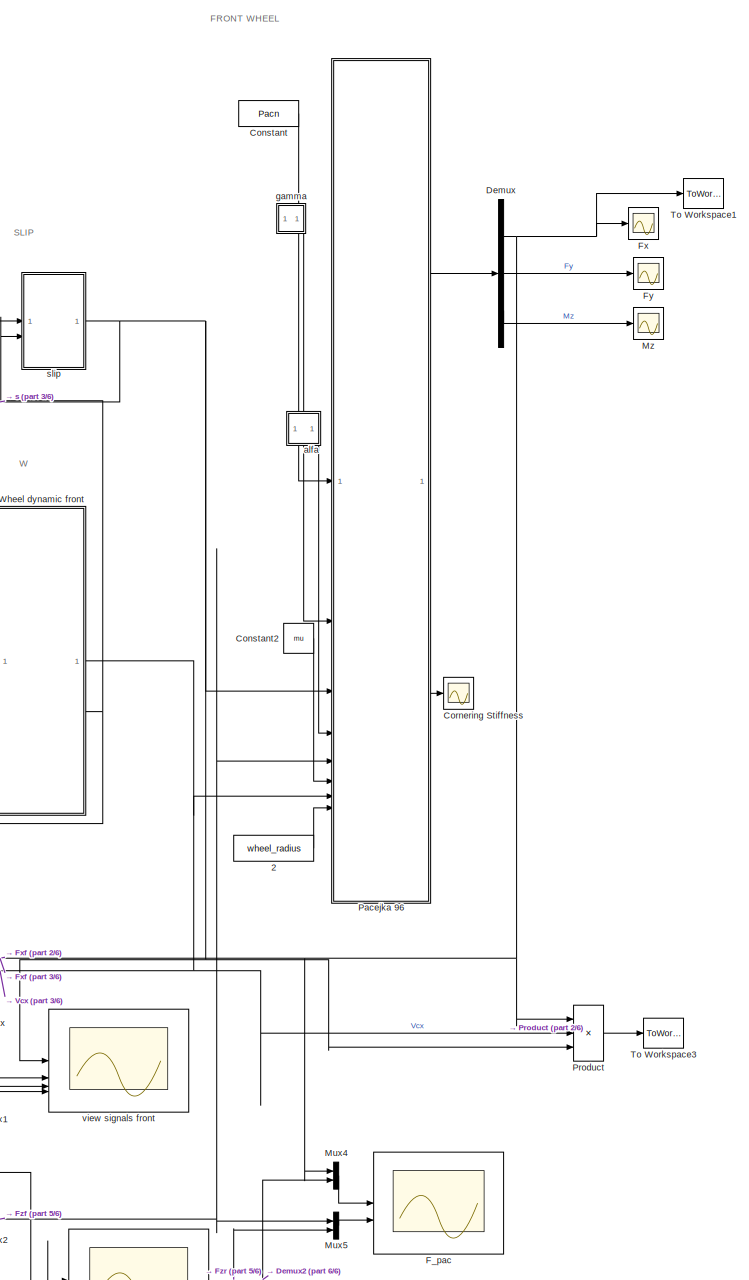
[diagram: root canvas - part 1/6, top right region]
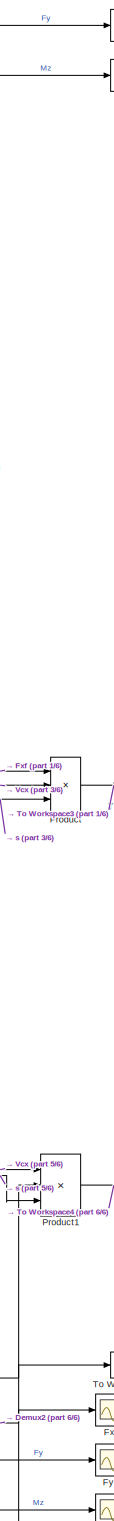
[diagram: root canvas - part 2/6, middle right region]
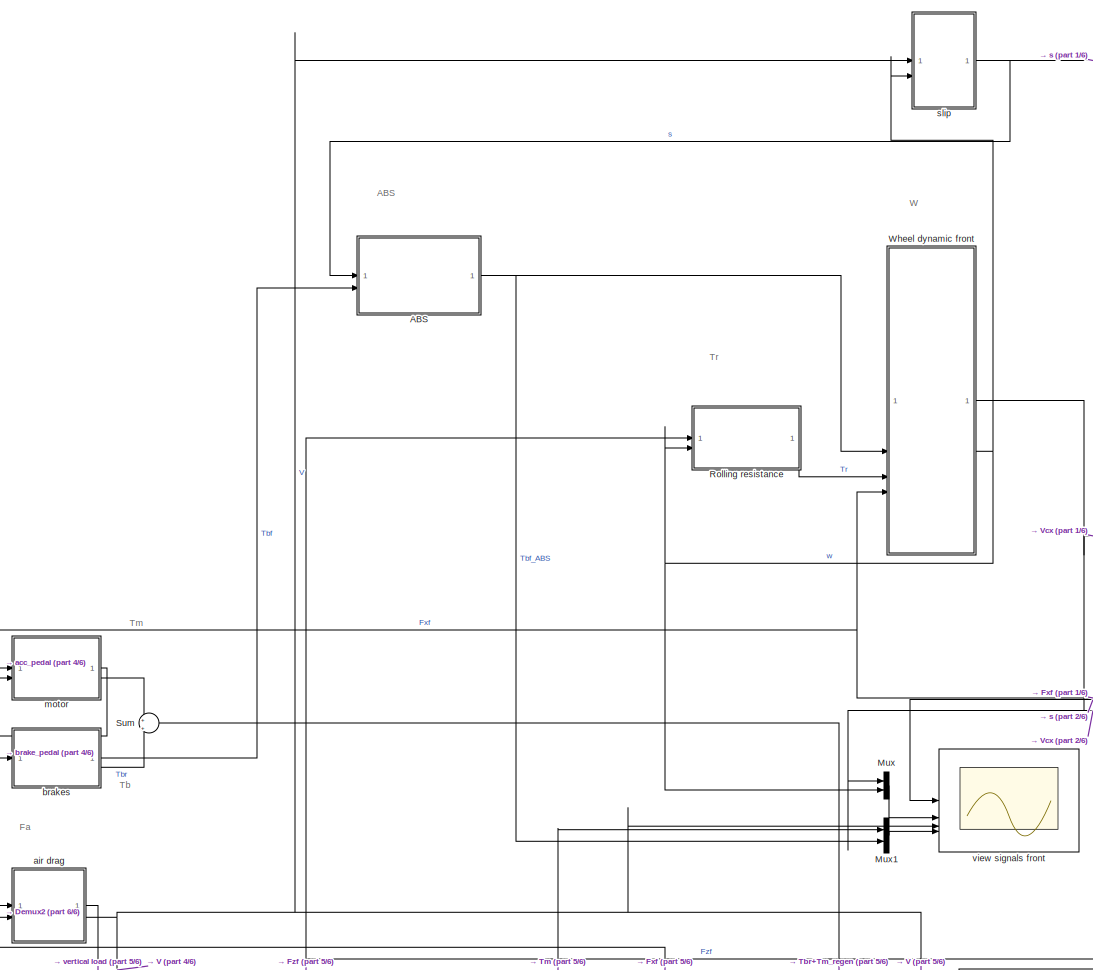
[diagram: root canvas - part 3/6, top center region]
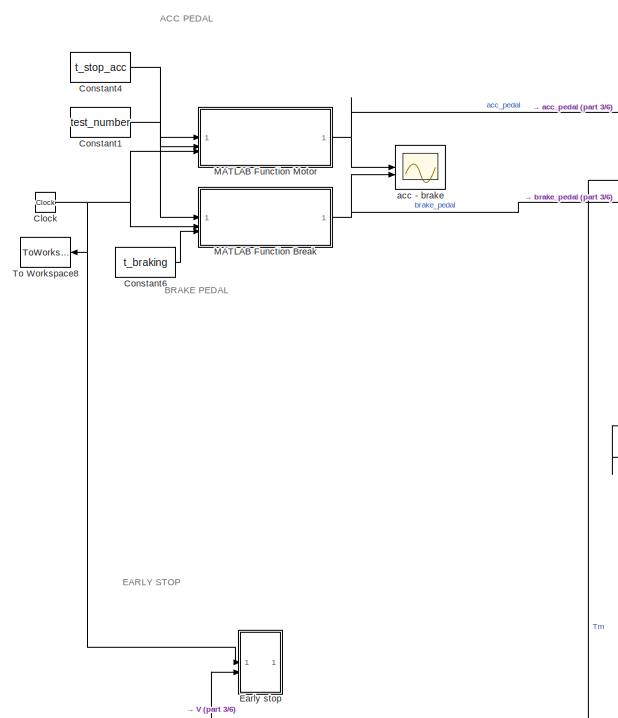
[diagram: root canvas - part 4/6, middle left region]
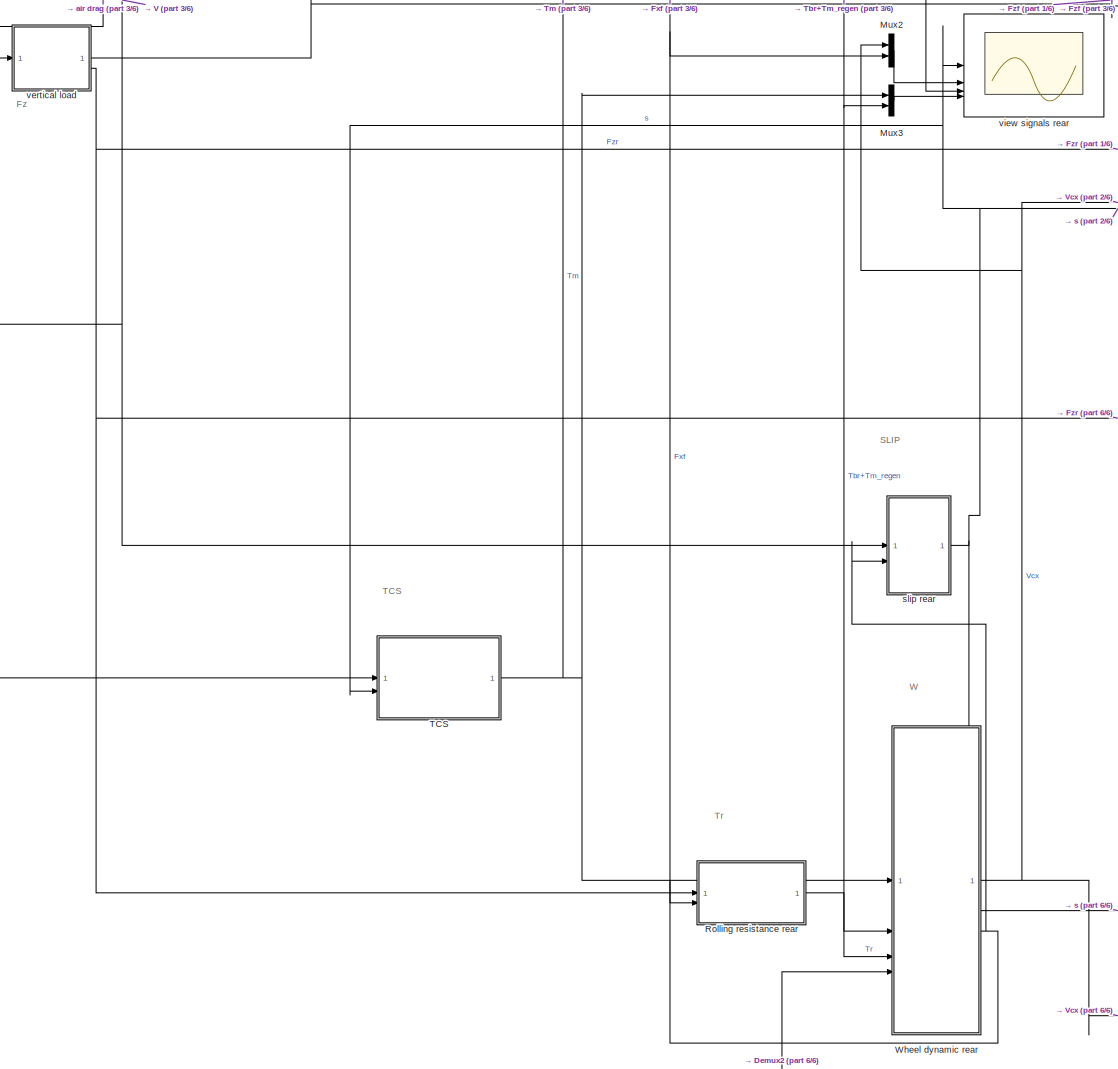
[diagram: root canvas - part 5/6, bottom center region]
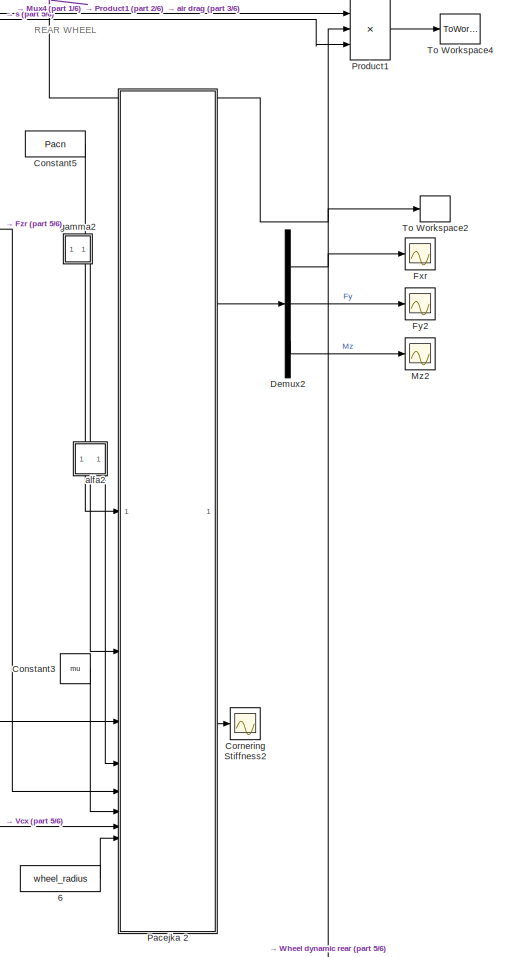
[diagram: root canvas - part 6/6, bottom right region]
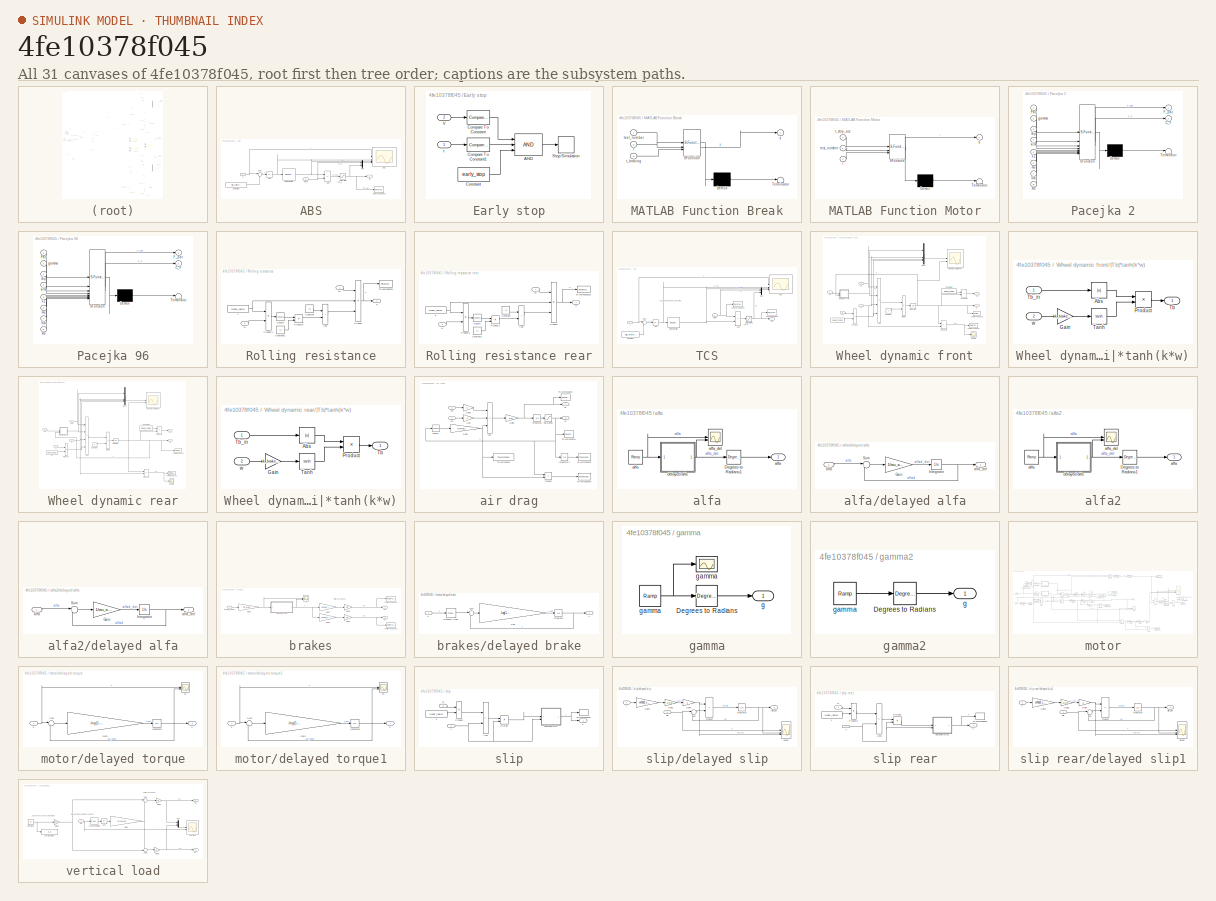
[diagram: thumbnail index - all 31 canvases of the model, root first then tree order]
MODEL slx_4fe10378f045
KIND model
CONFIG AbsTol = auto
CONFIG EnableMultiTasking = off
CONFIG FixedStep = 0.001
CONFIG MaxStep = auto
CONFIG MinStep = auto
CONFIG RelTol = 1e-3
CONFIG SampleTimeConstraint = Unconstrained
CONFIG SolverName = ode4
CONFIG StartTime = 0.0
CONFIG StopTime = Time_sim
BLOCK [Constant]    2
  Value = wheel_radius
BLOCK [Constant]    6
  Value = wheel_radius
BLOCK [SubSystem] ABS
BLOCK [Scope] ABS/ABS
  Floating = off
  NumInputPorts = 4
  ScopeSpecificationString = Simulink.scopes.TimeScopeBlockCfg('CurrentConfiguration', extmgr.ConfigurationSet(extmgr.Configuration('Core','General UI',true),extmgr.Configuration('Core','Source UI',true),extmgr.Configuration('Sources','WiredSimulink',true,'DataLoggingVariableName','ScopeData3'),extmgr.Configuration('Visuals','Time Domain',true,'SerializedDisplays',{struct('MinYLimReal','-0.21429','MaxYLimReal','0.18004','YLab...<+3460ch>
BLOCK [Abs] ABS/Abs
  SaturateOnIntegerOverflow = off
BLOCK [Sum] ABS/Add
  IconShape = rectangular
  Inputs = -+
BLOCK [Constant] ABS/Constant
  Value = slip_reference_ABS
BLOCK [Mux] ABS/Mux
  DisplayOption = bar
  Inputs = 2
BLOCK [Reference] ABS/PID Controller  REF=slpidlib/PID Controller
  LibrarySourceBlock = simulink/Continuous/PID Controller
  SourceBlock = slpidlib/PID Controller
  SourceType = PID 1dof
BLOCK [Saturate] ABS/Saturation
  LowerLimit = 0
  UpperLimit = inf
BLOCK [Sum] ABS/Sum
  Inputs = |+-
BLOCK [Outport] ABS/Tb
BLOCK [Inport] ABS/Tb_in
  Port = 2
BLOCK [ToWorkspace] ABS/To Workspace7
  FixptAsFi = on
  MaxDataPoints = inf
  SampleTime = -1
  VariableName = Tb_PID
BLOCK [Inport] ABS/s
BLOCK [Clock] Clock
BLOCK [Constant] Constant
  Value = Pacn
BLOCK [Constant] Constant1
  Value = test_number
BLOCK [Constant] Constant2
  Value = mu
BLOCK [Constant] Constant3
  Value = mu
BLOCK [Constant] Constant4
  Value = t_stop_acc
BLOCK [Constant] Constant5
  Value = Pacn
BLOCK [Constant] Constant6
  Value = t_braking
BLOCK [Scope] Cornering Stiffness
  Commented = on
  Floating = off
  NumInputPorts = 1
  ScopeSpecificationString = Simulink.scopes.TimeScopeBlockCfg('CurrentConfiguration', extmgr.ConfigurationSet(extmgr.Configuration('Core','General UI',true),extmgr.Configuration('Core','Source UI',true),extmgr.Configuration('Sources','WiredSimulink',true,'DataLoggingVariableName','ScopeData1'),extmgr.Configuration('Visuals','Time Domain',true,'SerializedDisplays',{struct('MinYLimReal','-195066.10326','MaxYLimReal','308717.31...<+1484ch>
BLOCK [Scope] Cornering Stiffness2
  Commented = on
  Floating = off
  NumInputPorts = 1
  ScopeSpecificationString = Simulink.scopes.TimeScopeBlockCfg('CurrentConfiguration', extmgr.ConfigurationSet(extmgr.Configuration('Core','General UI',true),extmgr.Configuration('Core','Source UI',true),extmgr.Configuration('Sources','WiredSimulink',true,'DataLoggingVariableName','ScopeData1'),extmgr.Configuration('Visuals','Time Domain',true,'SerializedDisplays',{struct('MinYLimReal','-195066.10326','MaxYLimReal','308717.31...<+1484ch>
BLOCK [Demux] Demux
  Outputs = 3
BLOCK [Demux] Demux2
  Outputs = 3
BLOCK [SubSystem] Early stop
BLOCK [Logic] Early stop/AND
  AllPortsSameDT = off
  IconShape = distinctive
  Inputs = 3
  OutDataTypeStr = boolean
BLOCK [Reference] Early stop/Compare To Constant  REF=simulink/Logic and Bit
Operations/Compare
To Constant
  SourceBlock = simulink/Logic and Bit\nOperations/Compare\nTo Constant
  SourceType = Compare To Constant
BLOCK [Reference] Early stop/Compare To Constant1  REF=simulink/Logic and Bit
Operations/Compare
To Constant
  SourceBlock = simulink/Logic and Bit\nOperations/Compare\nTo Constant
  SourceType = Compare To Constant
BLOCK [Constant] Early stop/Constant
  Value = early_stop
BLOCK [Stop] Early stop/Stop Simulation
BLOCK [Inport] Early stop/V
  Port = 2
BLOCK [Inport] Early stop/t
BLOCK [Scope] F_pac
  Floating = off
  NumInputPorts = 2
  ScopeSpecificationString = Simulink.scopes.TimeScopeBlockCfg('CurrentConfiguration', extmgr.ConfigurationSet(extmgr.Configuration('Core','General UI',true),extmgr.Configuration('Core','Source UI',true),extmgr.Configuration('Sources','WiredSimulink',true,'DataLoggingVariableName','ScopeData4'),extmgr.Configuration('Visuals','Time Domain',true,'SerializedDisplays',{struct('MinYLimReal','-6061.02209','MaxYLimReal','5666.99356'...<+2206ch>
BLOCK [Scope] Fx
  Floating = off
  NumInputPorts = 1
  ScopeSpecificationString = Simulink.scopes.TimeScopeBlockCfg('CurrentConfiguration', extmgr.ConfigurationSet(extmgr.Configuration('Core','General UI',true),extmgr.Configuration('Core','Source UI',true),extmgr.Configuration('Sources','WiredSimulink',true),extmgr.Configuration('Visuals','Time Domain',true,'SerializedDisplays',{struct('MinYLimReal','1253.67703','MaxYLimReal','1949.76371','YLabelReal','','MinYLimMag','1253.6770...<+1369ch>
BLOCK [Scope] Fxr
  Floating = off
  NumInputPorts = 1
  ScopeSpecificationString = Simulink.scopes.TimeScopeBlockCfg('CurrentConfiguration', extmgr.ConfigurationSet(extmgr.Configuration('Core','General UI',true),extmgr.Configuration('Core','Source UI',true),extmgr.Configuration('Sources','WiredSimulink',true,'DataLoggingVariableName','ScopeData3'),extmgr.Configuration('Visuals','Time Domain',true,'SerializedDisplays',{struct('MinYLimReal','1253.67703','MaxYLimReal','1949.76371',...<+1408ch>
BLOCK [Scope] Fy
  Commented = on
  Floating = off
  NumInputPorts = 1
  ScopeSpecificationString = Simulink.scopes.TimeScopeBlockCfg('CurrentConfiguration', extmgr.ConfigurationSet(extmgr.Configuration('Core','General UI',true),extmgr.Configuration('Core','Source UI',true),extmgr.Configuration('Sources','WiredSimulink',true,'DataLoggingVariableName','ScopeData1'),extmgr.Configuration('Visuals','Time Domain',true,'SerializedDisplays',{struct('MinYLimReal','-1.00000','MaxYLimReal','1.00000','YLab...<+1386ch>
BLOCK [Scope] Fy2
  Commented = on
  Floating = off
  NumInputPorts = 1
  ScopeSpecificationString = Simulink.scopes.TimeScopeBlockCfg('CurrentConfiguration', extmgr.ConfigurationSet(extmgr.Configuration('Core','General UI',true),extmgr.Configuration('Core','Source UI',true),extmgr.Configuration('Sources','WiredSimulink',true,'DataLoggingVariableName','ScopeData4'),extmgr.Configuration('Visuals','Time Domain',true,'SerializedDisplays',{struct('MinYLimReal','-1.00000','MaxYLimReal','1.00000','YLab...<+1386ch>
BLOCK [SubSystem] MATLAB Function Break
  ErrorFcn = Stateflow.Translate.translate
  PermitHierarchicalResolution = ExplicitOnly
  SFBlockType = MATLAB Function
  TreatAsAtomicUnit = on
BLOCK [Demux] MATLAB Function Break/ Demux 
  Outputs = 1
BLOCK [S-Function] MATLAB Function Break/ SFunction 
  EnableBusSupport = on
  FunctionName = sf_sfun
  PortCounts = [3 2]
  SFcnIsStateOwnerBlock = off
  SFunctionDeploymentMode = off
  Tag = Stateflow S-Function 3
BLOCK [Terminator] MATLAB Function Break/ Terminator 
BLOCK [Inport] MATLAB Function Break/t
  Port = 2
BLOCK [Inport] MATLAB Function Break/t_braking
  Port = 3
BLOCK [Inport] MATLAB Function Break/test_number
BLOCK [Outport] MATLAB Function Break/y
BLOCK [SubSystem] MATLAB Function Motor
  ErrorFcn = Stateflow.Translate.translate
  PermitHierarchicalResolution = ExplicitOnly
  SFBlockType = MATLAB Function
  TreatAsAtomicUnit = on
BLOCK [Demux] MATLAB Function Motor/ Demux 
  Outputs = 1
BLOCK [S-Function] MATLAB Function Motor/ SFunction 
  EnableBusSupport = on
  FunctionName = sf_sfun
  PortCounts = [3 2]
  SFcnIsStateOwnerBlock = off
  SFunctionDeploymentMode = off
  Tag = Stateflow S-Function 2
BLOCK [Terminator] MATLAB Function Motor/ Terminator 
BLOCK [Inport] MATLAB Function Motor/t
  Port = 3
BLOCK [Inport] MATLAB Function Motor/t_stop_acc
BLOCK [Inport] MATLAB Function Motor/test_number
  Port = 2
BLOCK [Outport] MATLAB Function Motor/y
BLOCK [Mux] Mux
  DisplayOption = bar
  Inputs = 2
BLOCK [Mux] Mux1
  DisplayOption = bar
  Inputs = 2
BLOCK [Mux] Mux2
  DisplayOption = bar
  Inputs = 2
BLOCK [Mux] Mux3
  DisplayOption = bar
  Inputs = 2
BLOCK [Mux] Mux4
  DisplayOption = bar
  Inputs = 2
BLOCK [Mux] Mux5
  DisplayOption = bar
  Inputs = 2
BLOCK [Scope] Mz
  Commented = on
  Floating = off
  NumInputPorts = 1
  ScopeSpecificationString = Simulink.scopes.TimeScopeBlockCfg('CurrentConfiguration', extmgr.ConfigurationSet(extmgr.Configuration('Core','General UI',true),extmgr.Configuration('Core','Source UI',true),extmgr.Configuration('Sources','WiredSimulink',true,'DataLoggingVariableName','ScopeData2'),extmgr.Configuration('Visuals','Time Domain',true,'SerializedDisplays',{struct('MinYLimReal','-3.48231','MaxYLimReal','-1.48231','YLa...<+1388ch>
BLOCK [Scope] Mz2
  Commented = on
  Floating = off
  NumInputPorts = 1
  ScopeSpecificationString = Simulink.scopes.TimeScopeBlockCfg('CurrentConfiguration', extmgr.ConfigurationSet(extmgr.Configuration('Core','General UI',true),extmgr.Configuration('Core','Source UI',true),extmgr.Configuration('Sources','WiredSimulink',true,'DataLoggingVariableName','ScopeData5'),extmgr.Configuration('Visuals','Time Domain',true,'SerializedDisplays',{struct('MinYLimReal','-3.48231','MaxYLimReal','-1.48231','YLa...<+1388ch>
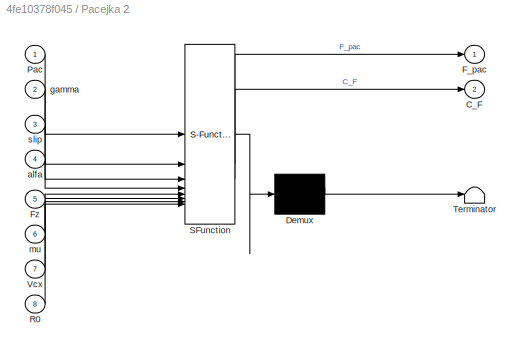
BLOCK [SubSystem] Pacejka 2
  ErrorFcn = Stateflow.Translate.translate
  PermitHierarchicalResolution = ExplicitOnly
  SFBlockType = MATLAB Function
  TreatAsAtomicUnit = on
BLOCK [Demux] Pacejka 2/ Demux 
  Outputs = 1
BLOCK [S-Function] Pacejka 2/ SFunction 
  EnableBusSupport = on
  FunctionName = sf_sfun
  PortCounts = [8 3]
  SFcnIsStateOwnerBlock = off
  SFunctionDeploymentMode = off
  Tag = Stateflow S-Function 5
BLOCK [Terminator] Pacejka 2/ Terminator 
BLOCK [Outport] Pacejka 2/C_F
  Port = 2
BLOCK [Outport] Pacejka 2/F_pac
BLOCK [Inport] Pacejka 2/Fz
  Port = 5
BLOCK [Inport] Pacejka 2/Pac
BLOCK [Inport] Pacejka 2/R0
  Port = 8
BLOCK [Inport] Pacejka 2/Vcx
  Port = 7
BLOCK [Inport] Pacejka 2/alfa
  Port = 4
BLOCK [Inport] Pacejka 2/gamma
  Port = 2
BLOCK [Inport] Pacejka 2/mu
  Port = 6
BLOCK [Inport] Pacejka 2/slip
  Port = 3
BLOCK [SubSystem] Pacejka 96
  ErrorFcn = Stateflow.Translate.translate
  PermitHierarchicalResolution = ExplicitOnly
  SFBlockType = MATLAB Function
  TreatAsAtomicUnit = on
BLOCK [Demux] Pacejka 96/ Demux 
  Outputs = 1
BLOCK [S-Function] Pacejka 96/ SFunction 
  EnableBusSupport = on
  FunctionName = sf_sfun
  PortCounts = [8 3]
  SFcnIsStateOwnerBlock = off
  SFunctionDeploymentMode = off
  Tag = Stateflow S-Function 1
BLOCK [Terminator] Pacejka 96/ Terminator 
BLOCK [Outport] Pacejka 96/C_F
  Port = 2
BLOCK [Outport] Pacejka 96/F_pac
BLOCK [Inport] Pacejka 96/Fz
  Port = 5
BLOCK [Inport] Pacejka 96/Pac
BLOCK [Inport] Pacejka 96/R0
  Port = 8
BLOCK [Inport] Pacejka 96/Vcx
  Port = 7
BLOCK [Inport] Pacejka 96/alfa
  Port = 4
BLOCK [Inport] Pacejka 96/gamma
  Port = 2
BLOCK [Inport] Pacejka 96/mu
  Port = 6
BLOCK [Inport] Pacejka 96/slip
  Port = 3
BLOCK [Product] Product
  Inputs = 3
BLOCK [Product] Product1
  Inputs = 3
BLOCK [SubSystem] Rolling resistance
BLOCK [SubSystem] Rolling resistance rear
BLOCK [Constant] Rolling resistance rear/   5
  Value = wheel_radius
BLOCK [Sum] Rolling resistance rear/Add
  IconShape = rectangular
BLOCK [Constant] Rolling resistance rear/Constant
  Value = f0
BLOCK [Constant] Rolling resistance rear/Constant1
  Value = f2
BLOCK [Inport] Rolling resistance rear/Fz
BLOCK [Product] Rolling resistance rear/Product
  Inputs = 3
BLOCK [Product] Rolling resistance rear/Product1
BLOCK [Product] Rolling resistance rear/Product2
BLOCK [Math] Rolling resistance rear/Square
  Operator = square
BLOCK [ToWorkspace] Rolling resistance rear/To Workspace10
  FixptAsFi = on
  MaxDataPoints = inf
  SampleTime = -1
  VariableName = Trr
BLOCK [Outport] Rolling resistance rear/Tr
BLOCK [Inport] Rolling resistance rear/w
  Port = 2
BLOCK [Constant] Rolling resistance/   1
  Value = wheel_radius
BLOCK [Sum] Rolling resistance/Add
  IconShape = rectangular
BLOCK [Constant] Rolling resistance/Constant
  Value = f0
BLOCK [Constant] Rolling resistance/Constant1
  Value = f2
BLOCK [Inport] Rolling resistance/Fz
BLOCK [Product] Rolling resistance/Product
  Inputs = 3
BLOCK [Product] Rolling resistance/Product1
BLOCK [Product] Rolling resistance/Product2
BLOCK [Math] Rolling resistance/Square
  Operator = square
BLOCK [ToWorkspace] Rolling resistance/To Workspace9
  FixptAsFi = on
  MaxDataPoints = inf
  SampleTime = -1
  VariableName = Trf
BLOCK [Outport] Rolling resistance/Tr
BLOCK [Inport] Rolling resistance/w
  Port = 2
BLOCK [Sum] Sum
  Inputs = +|+
BLOCK [SubSystem] TCS
BLOCK [Abs] TCS/Abs
  SaturateOnIntegerOverflow = off
BLOCK [Sum] TCS/Add
  IconShape = rectangular
  Inputs = +-
BLOCK [Constant] TCS/Constant
  Value = slip_reference_TCS
BLOCK [Mux] TCS/Mux
  DisplayOption = bar
  Inputs = 2
BLOCK [Reference] TCS/PID Controller  REF=slpidlib/PID Controller
  LibrarySourceBlock = simulink/Continuous/PID Controller
  SourceBlock = slpidlib/PID Controller
  SourceType = PID 1dof
BLOCK [Saturate] TCS/Saturation1
  LowerLimit = 0
  UpperLimit = inf
BLOCK [Sum] TCS/Sum
  Inputs = |+-
BLOCK [Scope] TCS/TCS
  Floating = off
  NumInputPorts = 4
  ScopeSpecificationString = Simulink.scopes.TimeScopeBlockCfg('CurrentConfiguration', extmgr.ConfigurationSet(extmgr.Configuration('Core','General UI',true),extmgr.Configuration('Core','Source UI',true),extmgr.Configuration('Sources','WiredSimulink',true,'DataLoggingVariableName','ScopeData3'),extmgr.Configuration('Visuals','Time Domain',true,'SerializedDisplays',{struct('MinYLimReal','-0.19737','MaxYLimReal','0.76251','YLab...<+3511ch>
BLOCK [Outport] TCS/Tm
BLOCK [Inport] TCS/Tm_in
BLOCK [ToWorkspace] TCS/To Workspace
  FixptAsFi = on
  MaxDataPoints = inf
  SampleTime = -1
  VariableName = Tm_TCS
BLOCK [ToWorkspace] TCS/To Workspace1
  FixptAsFi = on
  MaxDataPoints = inf
  SampleTime = -1
  VariableName = Tm
BLOCK [Inport] TCS/s
  Port = 2
BLOCK [ToWorkspace] To Workspace1
  FixptAsFi = on
  MaxDataPoints = inf
  SampleTime = -1
  VariableName = Fxf
BLOCK [ToWorkspace] To Workspace2
  FixptAsFi = on
  MaxDataPoints = inf
  SampleTime = -1
  VariableName = Fxr
BLOCK [ToWorkspace] To Workspace3
  FixptAsFi = on
  MaxDataPoints = inf
  SampleTime = -1
  VariableName = Pot_Fxf
BLOCK [ToWorkspace] To Workspace4
  FixptAsFi = on
  MaxDataPoints = inf
  SampleTime = -1
  VariableName = Pot_Fxr
BLOCK [ToWorkspace] To Workspace8
  FixptAsFi = on
  MaxDataPoints = inf
  NameLocation = top
  SampleTime = -1
  VariableName = t
BLOCK [SubSystem] Wheel dynamic front
BLOCK [Constant] Wheel dynamic front/   
  Value = wheel_radius
BLOCK [Sum] Wheel dynamic front/Add
  IconShape = rectangular
  Inputs = +---
BLOCK [Constant] Wheel dynamic front/Constant
  Value = Ir
BLOCK [Constant] Wheel dynamic front/Constant1
  Value = wheel_radius
BLOCK [Product] Wheel dynamic front/Divide
  Inputs = */
BLOCK [Inport] Wheel dynamic front/Fx
  Port = 4
BLOCK [Integrator] Wheel dynamic front/Integrator
  InitialCondition = w0
BLOCK [Mux] Wheel dynamic front/Mux1
  DisplayOption = bar
BLOCK [Product] Wheel dynamic front/Product
BLOCK [Product] Wheel dynamic front/Product1
BLOCK [Product] Wheel dynamic front/Product2
BLOCK [Scope] Wheel dynamic front/Scope
  Floating = off
  NumInputPorts = 1
  ScopeSpecificationString = Simulink.scopes.TimeScopeBlockCfg('CurrentConfiguration', extmgr.ConfigurationSet(extmgr.Configuration('Core','General UI',true),extmgr.Configuration('Core','Source UI',true),extmgr.Configuration('Sources','WiredSimulink',true,'DataLoggingVariableName','ScopeData5'),extmgr.Configuration('Visuals','Time Domain',true),extmgr.Configuration('Tools','Plot Navigation',true),extmgr.Configuration('Tools',...<+40ch>
BLOCK [Inport] Wheel dynamic front/Tb
  Port = 2
BLOCK [Inport] Wheel dynamic front/Tm
BLOCK [ToWorkspace] Wheel dynamic front/To Workspace1
  FixptAsFi = on
  MaxDataPoints = inf
  SampleTime = -1
  VariableName = Pot_Trf
BLOCK [ToWorkspace] Wheel dynamic front/To Workspace3
  FixptAsFi = on
  MaxDataPoints = inf
  SampleTime = -1
  VariableName = wf
BLOCK [Inport] Wheel dynamic front/Tr
  Port = 3
BLOCK [Outport] Wheel dynamic front/Vcx
BLOCK [Outport] Wheel dynamic front/w
  Port = 2
BLOCK [Scope] Wheel dynamic front/wheel dynamic front
  Floating = off
  NumInputPorts = 2
  ScopeSpecificationString = Simulink.scopes.TimeScopeBlockCfg('CurrentConfiguration', extmgr.ConfigurationSet(extmgr.Configuration('Core','General UI',true),extmgr.Configuration('Core','Source UI',true),extmgr.Configuration('Sources','WiredSimulink',true,'DataLoggingVariableName','ScopeData1'),extmgr.Configuration('Visuals','Time Domain',true,'SerializedDisplays',{struct('MinYLimReal','-21333589485948013194795043463680358662...<+2430ch>
BLOCK [SubSystem] Wheel dynamic front/|Tb|*tanh(k*w)
BLOCK [Abs] Wheel dynamic front/|Tb|*tanh(k*w)/Abs
  SaturateOnIntegerOverflow = off
BLOCK [Gain] Wheel dynamic front/|Tb|*tanh(k*w)/Gain
  Gain = k_brake_antireverse
BLOCK [Product] Wheel dynamic front/|Tb|*tanh(k*w)/Product
BLOCK [Trigonometry] Wheel dynamic front/|Tb|*tanh(k*w)/Tanh
  Operator = tanh
BLOCK [Outport] Wheel dynamic front/|Tb|*tanh(k*w)/Tb
BLOCK [Inport] Wheel dynamic front/|Tb|*tanh(k*w)/Tb_in
BLOCK [Inport] Wheel dynamic front/|Tb|*tanh(k*w)/w
  Port = 2
BLOCK [SubSystem] Wheel dynamic rear
BLOCK [Constant] Wheel dynamic rear/   5
  Value = wheel_radius
BLOCK [Sum] Wheel dynamic rear/Add
  IconShape = rectangular
  Inputs = +---
BLOCK [Constant] Wheel dynamic rear/Constant
  Value = Ir
BLOCK [Constant] Wheel dynamic rear/Constant1
  Value = wheel_radius
BLOCK [Product] Wheel dynamic rear/Divide
  Inputs = */
BLOCK [Inport] Wheel dynamic rear/Fx
  Port = 4
BLOCK [Integrator] Wheel dynamic rear/Integrator
  InitialCondition = w0
BLOCK [Mux] Wheel dynamic rear/Mux1
  DisplayOption = bar
BLOCK [Product] Wheel dynamic rear/Product
BLOCK [Product] Wheel dynamic rear/Product1
BLOCK [Product] Wheel dynamic rear/Product2
BLOCK [Scope] Wheel dynamic rear/Scope
  Floating = off
  NumInputPorts = 1
  ScopeSpecificationString = Simulink.scopes.TimeScopeBlockCfg('CurrentConfiguration', extmgr.ConfigurationSet(extmgr.Configuration('Core','General UI',true),extmgr.Configuration('Core','Source UI',true),extmgr.Configuration('Sources','WiredSimulink',true,'DataLoggingVariableName','ScopeData4'),extmgr.Configuration('Visuals','Time Domain',true),extmgr.Configuration('Tools','Plot Navigation',true),extmgr.Configuration('Tools',...<+40ch>
BLOCK [Inport] Wheel dynamic rear/Tb
  Port = 2
BLOCK [Inport] Wheel dynamic rear/Tm
BLOCK [ToWorkspace] Wheel dynamic rear/To Workspace1
  FixptAsFi = on
  MaxDataPoints = inf
  SampleTime = -1
  VariableName = Pot_Trr
BLOCK [ToWorkspace] Wheel dynamic rear/To Workspace4
  FixptAsFi = on
  MaxDataPoints = inf
  SampleTime = -1
  VariableName = wr
BLOCK [Inport] Wheel dynamic rear/Tr
  Port = 3
BLOCK [Outport] Wheel dynamic rear/Vcx
BLOCK [Outport] Wheel dynamic rear/w
  Port = 2
BLOCK [Scope] Wheel dynamic rear/wheel dynamic rear
  Floating = off
  NumInputPorts = 2
  ScopeSpecificationString = Simulink.scopes.TimeScopeBlockCfg('CurrentConfiguration', extmgr.ConfigurationSet(extmgr.Configuration('Core','General UI',true),extmgr.Configuration('Core','Source UI',true),extmgr.Configuration('Sources','WiredSimulink',true,'DataLoggingVariableName','ScopeData1'),extmgr.Configuration('Visuals','Time Domain',true,'SerializedDisplays',{struct('MinYLimReal','-1.22398','MaxYLimReal','33.34331','YLa...<+2260ch>
BLOCK [SubSystem] Wheel dynamic rear/|Tb|*tanh(k*w)
BLOCK [Abs] Wheel dynamic rear/|Tb|*tanh(k*w)/Abs
  SaturateOnIntegerOverflow = off
BLOCK [Gain] Wheel dynamic rear/|Tb|*tanh(k*w)/Gain
  Gain = k_brake_antireverse
BLOCK [Product] Wheel dynamic rear/|Tb|*tanh(k*w)/Product
BLOCK [Trigonometry] Wheel dynamic rear/|Tb|*tanh(k*w)/Tanh
  Operator = tanh
BLOCK [Outport] Wheel dynamic rear/|Tb|*tanh(k*w)/Tb
BLOCK [Inport] Wheel dynamic rear/|Tb|*tanh(k*w)/Tb_in
BLOCK [Inport] Wheel dynamic rear/|Tb|*tanh(k*w)/w
  Port = 2
BLOCK [Scope] acc - brake
  Floating = off
  NumInputPorts = 2
  ScopeSpecificationString = Simulink.scopes.TimeScopeBlockCfg('CurrentConfiguration', extmgr.ConfigurationSet(extmgr.Configuration('Core','General UI',true),extmgr.Configuration('Core','Source UI',true),extmgr.Configuration('Sources','WiredSimulink',true,'DataLoggingVariableName','ScopeData2'),extmgr.Configuration('Visuals','Time Domain',true,'SerializedDisplays',{struct('MinYLimReal','-0.125','MaxYLimReal','1.125','YLabelRe...<+2061ch>
BLOCK [SubSystem] air drag
BLOCK [Sum] air drag/Add
  IconShape = rectangular
  Inputs = ++-
BLOCK [Inport] air drag/Fxf
BLOCK [Inport] air drag/Fxr
  Port = 2
BLOCK [Gain] air drag/Gain
  Gain = 2
BLOCK [Gain] air drag/Gain1
  Gain = 0.5*rho*Cx*Af
BLOCK [Gain] air drag/Gain2
  Gain = 1/m
BLOCK [Gain] air drag/Gain3
  Gain = 2
BLOCK [Integrator] air drag/Integrator
  InitialCondition = V0
BLOCK [Integrator] air drag/Integrator1
BLOCK [Product] air drag/Product
BLOCK [Saturate] air drag/Saturation
  LowerLimit = 0.000000001
  UpperLimit = 1e100
BLOCK [Math] air drag/Square
  Operator = square
BLOCK [ToWorkspace] air drag/To Workspace
  FixptAsFi = on
  MaxDataPoints = inf
  SampleTime = -1
  VariableName = air_drag
BLOCK [ToWorkspace] air drag/To Workspace1
  FixptAsFi = on
  MaxDataPoints = inf
  SampleTime = -1
  VariableName = V
BLOCK [ToWorkspace] air drag/To Workspace2
  FixptAsFi = on
  MaxDataPoints = inf
  SampleTime = -1
  VariableName = ax
BLOCK [ToWorkspace] air drag/To Workspace3
  FixptAsFi = on
  MaxDataPoints = inf
  SampleTime = -1
  VariableName = delta_x
BLOCK [ToWorkspace] air drag/To Workspace4
  FixptAsFi = on
  MaxDataPoints = inf
  SampleTime = -1
  VariableName = Pot_air
BLOCK [Outport] air drag/Vx
  Port = 2
BLOCK [Outport] air drag/ax
BLOCK [SubSystem] alfa
BLOCK [Reference] alfa/Degrees to Radians1  REF=simulink_extras/Transformations/Degrees to
Radians
  SourceBlock = simulink_extras/Transformations/Degrees to\nRadians
  SourceType = DegreesToRadians
BLOCK [Reference] alfa/alfa  REF=simulink/Sources/Ramp
  SourceBlock = simulink/Sources/Ramp
  SourceType = Ramp
BLOCK [Outport] alfa/alfa  
BLOCK [Scope] alfa/alfa_del
  Floating = off
  NumInputPorts = 2
  ScopeSpecificationString = Simulink.scopes.TimeScopeBlockCfg('CurrentConfiguration', extmgr.ConfigurationSet(extmgr.Configuration('Core','General UI',true),extmgr.Configuration('Core','Source UI',true),extmgr.Configuration('Sources','WiredSimulink',true,'DataLogging',true,'DataLoggingVariableName','ScopeData7','DataLoggingSaveFormat','StructureWithTime','DataLoggingDecimation','1','DataLoggingDecimateData',true),extmgr.Conf...<+1784ch>
BLOCK [SubSystem] alfa/delayed alfa
BLOCK [Gain] alfa/delayed alfa/Gain
  Gain = 1/tau_alfa
BLOCK [Integrator] alfa/delayed alfa/Integrator
  InitialCondition = alfa0
BLOCK [Sum] alfa/delayed alfa/Sum
  Inputs = |+-
BLOCK [Inport] alfa/delayed alfa/alfa
BLOCK [Outport] alfa/delayed alfa/alfa_del
BLOCK [SubSystem] alfa2
BLOCK [Reference] alfa2/Degrees to Radians1  REF=simulink_extras/Transformations/Degrees to
Radians
  SourceBlock = simulink_extras/Transformations/Degrees to\nRadians
  SourceType = DegreesToRadians
BLOCK [Reference] alfa2/alfa  REF=simulink/Sources/Ramp
  SourceBlock = simulink/Sources/Ramp
  SourceType = Ramp
BLOCK [Outport] alfa2/alfa  
BLOCK [Scope] alfa2/alfa_del
  Floating = off
  NumInputPorts = 2
  ScopeSpecificationString = Simulink.scopes.TimeScopeBlockCfg('CurrentConfiguration', extmgr.ConfigurationSet(extmgr.Configuration('Core','General UI',true),extmgr.Configuration('Core','Source UI',true),extmgr.Configuration('Sources','WiredSimulink',true,'DataLogging',true,'DataLoggingVariableName','ScopeData7652','DataLoggingSaveFormat','StructureWithTime','DataLoggingDecimation','1','DataLoggingDecimateData',true),extmgr.C...<+1786ch>
BLOCK [SubSystem] alfa2/delayed alfa
BLOCK [Gain] alfa2/delayed alfa/Gain
  Gain = 1/tau_alfa
BLOCK [Integrator] alfa2/delayed alfa/Integrator
  InitialCondition = alfa0
BLOCK [Sum] alfa2/delayed alfa/Sum
  Inputs = |+-
BLOCK [Inport] alfa2/delayed alfa/alfa
BLOCK [Outport] alfa2/delayed alfa/alfa_del
BLOCK [SubSystem] brakes
BLOCK [Gain] brakes/Gain1
  Gain = brake_front
BLOCK [Gain] brakes/Gain2
  Gain = brake_rear
BLOCK [Gain] brakes/Gain3
  Gain = Tb_max
BLOCK [Gain] brakes/Gain5
  Gain = 1/2
BLOCK [Gain] brakes/Gain6
  Gain = 1/2
BLOCK [Outport] brakes/Tbf
BLOCK [Outport] brakes/Tbr
  Port = 2
BLOCK [ToWorkspace] brakes/To Workspace11
  FixptAsFi = on
  MaxDataPoints = inf
  SampleTime = -1
  VariableName = Tbf
BLOCK [ToWorkspace] brakes/To Workspace12
  FixptAsFi = on
  MaxDataPoints = inf
  SampleTime = -1
  VariableName = Tbr
BLOCK [Inport] brakes/brake_pedal
BLOCK [SubSystem] brakes/delayed brake
BLOCK [Gain] brakes/delayed brake/Gain
  Gain = -log(1-0.632) / brake_risetime
BLOCK [Integrator] brakes/delayed brake/Integrator
BLOCK [Sum] brakes/delayed brake/Sum
  Inputs = |+-
BLOCK [TransportDelay] brakes/delayed brake/Transport Delay
  DelayTime = brake_delay
BLOCK [Inport] brakes/delayed brake/u
BLOCK [Outport] brakes/delayed brake/x
BLOCK [Scope] brakes/x
  Commented = on
  Floating = off
  NumInputPorts = 2
  ScopeSpecificationString = Simulink.scopes.TimeScopeBlockCfg('CurrentConfiguration', extmgr.ConfigurationSet(extmgr.Configuration('Core','General UI',true),extmgr.Configuration('Core','Source UI',true),extmgr.Configuration('Sources','WiredSimulink',true,'DataLogging',true,'DataLoggingVariableName','ScopeData715','DataLoggingSaveFormat','StructureWithTime','DataLoggingDecimation','1','DataLoggingDecimateData',true),extmgr.Co...<+1804ch>
BLOCK [SubSystem] gamma
BLOCK [Reference] gamma/Degrees to Radians  REF=simulink_extras/Transformations/Degrees to
Radians
  SourceBlock = simulink_extras/Transformations/Degrees to\nRadians
  SourceType = DegreesToRadians
BLOCK [Outport] gamma/g
BLOCK [Reference] gamma/gamma  REF=simulink/Sources/Ramp
  SourceBlock = simulink/Sources/Ramp
  SourceType = Ramp
BLOCK [Scope] gamma/gamma 
  Floating = off
  NumInputPorts = 1
  ScopeSpecificationString = Simulink.scopes.TimeScopeBlockCfg('CurrentConfiguration', extmgr.ConfigurationSet(extmgr.Configuration('Core','General UI',true),extmgr.Configuration('Core','Source UI',true),extmgr.Configuration('Sources','WiredSimulink',true,'DataLogging',true,'DataLoggingVariableName','ScopeData3','DataLoggingSaveFormat','Array','DataLoggingDecimation','1','DataLoggingDecimateData',true),extmgr.Configuration('V...<+1693ch>
BLOCK [SubSystem] gamma2
BLOCK [Reference] gamma2/Degrees to Radians  REF=simulink_extras/Transformations/Degrees to
Radians
  SourceBlock = simulink_extras/Transformations/Degrees to\nRadians
  SourceType = DegreesToRadians
BLOCK [Outport] gamma2/g
BLOCK [Reference] gamma2/gamma  REF=simulink/Sources/Ramp
  SourceBlock = simulink/Sources/Ramp
  SourceType = Ramp
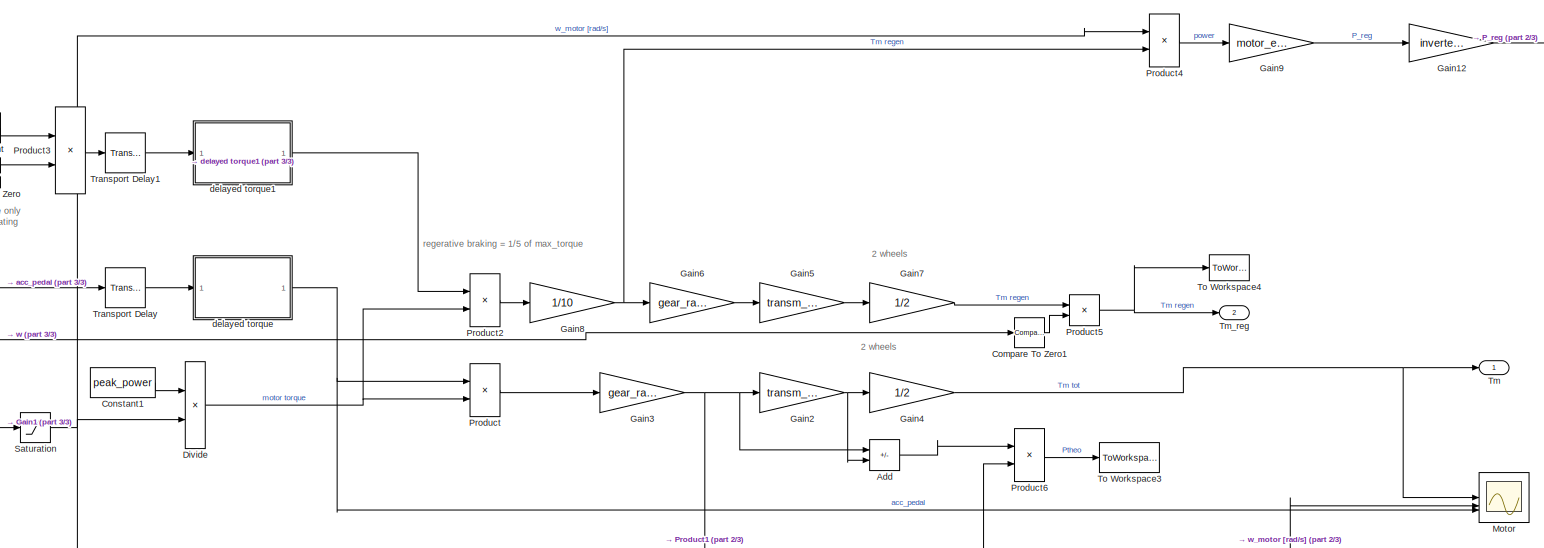
[diagram: motor - part 1/3, central region]
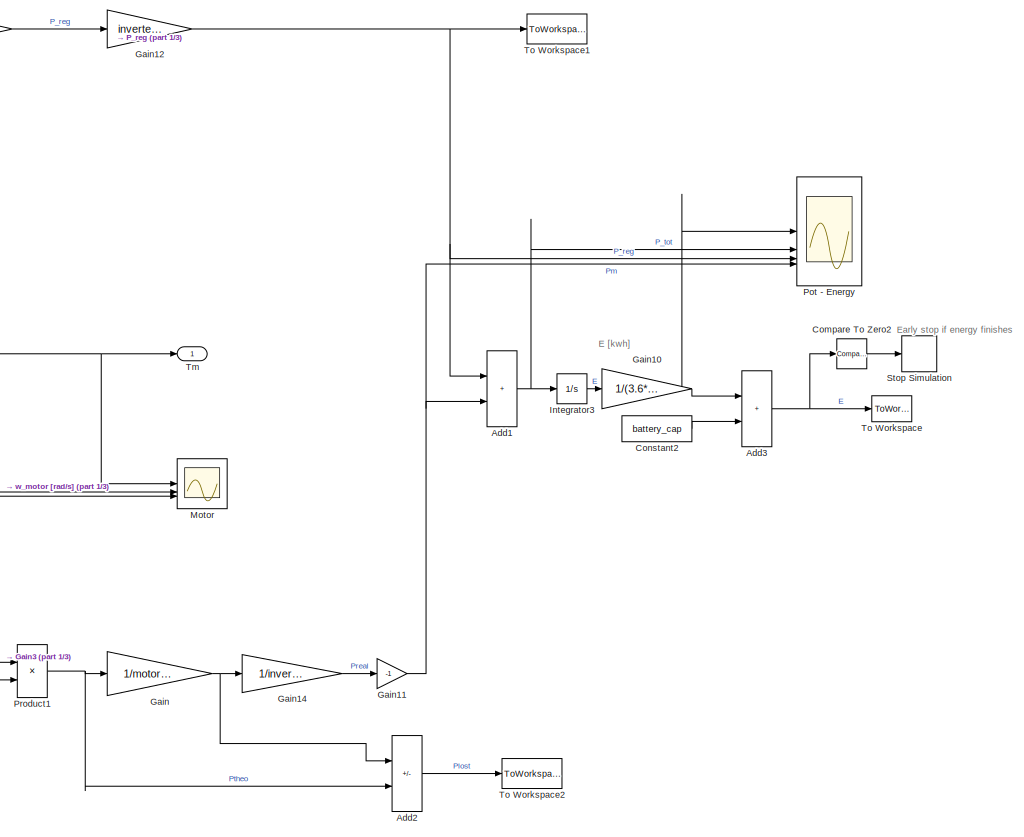
[diagram: motor - part 2/3, right side, full height]
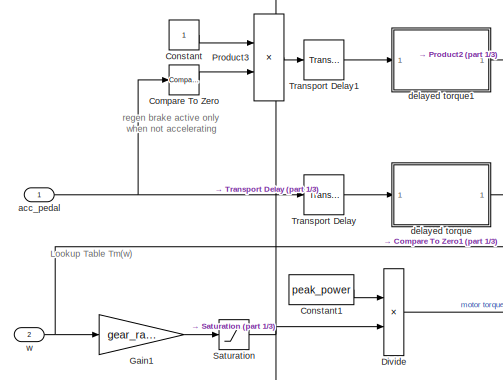
[diagram: motor - part 3/3, middle left region]
BLOCK [SubSystem] motor
BLOCK [Sum] motor/Add
  IconShape = rectangular
  Inputs = +-
BLOCK [Sum] motor/Add1
  IconShape = rectangular
BLOCK [Sum] motor/Add2
  IconShape = rectangular
  Inputs = +-
BLOCK [Sum] motor/Add3
  IconShape = rectangular
BLOCK [Reference] motor/Compare To Zero  REF=simulink/Logic and Bit
Operations/Compare
To Zero
  SourceBlock = simulink/Logic and Bit\nOperations/Compare\nTo Zero
  SourceType = Compare To Zero
BLOCK [Reference] motor/Compare To Zero1  REF=simulink/Logic and Bit
Operations/Compare
To Zero
  SourceBlock = simulink/Logic and Bit\nOperations/Compare\nTo Zero
  SourceType = Compare To Zero
BLOCK [Reference] motor/Compare To Zero2  REF=simulink/Logic and Bit
Operations/Compare
To Zero
  SourceBlock = simulink/Logic and Bit\nOperations/Compare\nTo Zero
  SourceType = Compare To Zero
BLOCK [Constant] motor/Constant
BLOCK [Constant] motor/Constant1
  Value = peak_power
BLOCK [Constant] motor/Constant2
  Value = battery_cap
BLOCK [Product] motor/Divide
  Inputs = */
BLOCK [Gain] motor/Gain
  Gain = 1/motor_eff
BLOCK [Gain] motor/Gain1
  Gain = gear_ratio
BLOCK [Gain] motor/Gain10
  Gain = 1/(3.6*1e6)
BLOCK [Gain] motor/Gain11
  Gain = -1
BLOCK [Gain] motor/Gain12
  Gain = inverter_eff
BLOCK [Gain] motor/Gain14
  Gain = 1/inverter_eff
BLOCK [Gain] motor/Gain2
  Gain = transm_eff
BLOCK [Gain] motor/Gain3
  Gain = gear_ratio
BLOCK [Gain] motor/Gain4
  Gain = 1/2
BLOCK [Gain] motor/Gain5
  Gain = transm_eff
BLOCK [Gain] motor/Gain6
  Gain = gear_ratio
BLOCK [Gain] motor/Gain7
  Gain = 1/2
BLOCK [Gain] motor/Gain8
  Gain = 1/10
BLOCK [Gain] motor/Gain9
  Gain = motor_eff
BLOCK [Integrator] motor/Integrator3
BLOCK [Scope] motor/Motor
  Floating = off
  NumInputPorts = 3
  ScopeSpecificationString = Simulink.scopes.TimeScopeBlockCfg('CurrentConfiguration', extmgr.ConfigurationSet(extmgr.Configuration('Core','General UI',true),extmgr.Configuration('Core','Source UI',true),extmgr.Configuration('Sources','WiredSimulink',true,'DataLoggingVariableName','ScopeData1'),extmgr.Configuration('Visuals','Time Domain',true,'SerializedDisplays',{struct('MinYLimReal','-175.47478','MaxYLimReal','1579.27304',...<+2735ch>
BLOCK [Scope] motor/Pot - Energy
  Floating = off
  NumInputPorts = 4
  ScopeSpecificationString = Simulink.scopes.TimeScopeBlockCfg('CurrentConfiguration', extmgr.ConfigurationSet(extmgr.Configuration('Core','General UI',true),extmgr.Configuration('Core','Source UI',true),extmgr.Configuration('Sources','WiredSimulink',true,'DataLoggingVariableName','ScopeData4'),extmgr.Configuration('Visuals','Time Domain',true,'SerializedDisplays',{struct('MinYLimReal','-10386.55512','MaxYLimReal','1154.06168...<+3546ch>
BLOCK [Product] motor/Product
BLOCK [Product] motor/Product1
BLOCK [Product] motor/Product2
BLOCK [Product] motor/Product3
BLOCK [Product] motor/Product4
BLOCK [Product] motor/Product5
BLOCK [Product] motor/Product6
BLOCK [Saturate] motor/Saturation
  LowerLimit = min_motor_speed
  UpperLimit = max_motor_speed
BLOCK [Stop] motor/Stop Simulation
BLOCK [Outport] motor/Tm
BLOCK [Outport] motor/Tm_reg
  Port = 2
BLOCK [ToWorkspace] motor/To Workspace
  FixptAsFi = on
  MaxDataPoints = inf
  SampleTime = -1
  VariableName = E
BLOCK [ToWorkspace] motor/To Workspace1
  FixptAsFi = on
  MaxDataPoints = inf
  SampleTime = -1
  VariableName = Pot_reg
BLOCK [ToWorkspace] motor/To Workspace2
  FixptAsFi = on
  MaxDataPoints = inf
  SampleTime = -1
  VariableName = Pot_mec
BLOCK [ToWorkspace] motor/To Workspace3
  FixptAsFi = on
  MaxDataPoints = inf
  SampleTime = -1
  VariableName = Pot_transm
BLOCK [ToWorkspace] motor/To Workspace4
  FixptAsFi = on
  MaxDataPoints = inf
  SampleTime = -1
  VariableName = Tm_reg
BLOCK [TransportDelay] motor/Transport Delay
  DelayTime = motor_delay
BLOCK [TransportDelay] motor/Transport Delay1
  DelayTime = motor_delay
BLOCK [Inport] motor/acc_pedal
BLOCK [SubSystem] motor/delayed torque
BLOCK [Gain] motor/delayed torque/Gain
  Gain = -log(1-0.632) / motor_risetime
BLOCK [Integrator] motor/delayed torque/Integrator
BLOCK [Sum] motor/delayed torque/Sum
  Inputs = |+-
BLOCK [Inport] motor/delayed torque/u
BLOCK [Outport] motor/delayed torque/x
BLOCK [Scope] motor/delayed torque/x1
  Floating = off
  NumInputPorts = 2
  ScopeSpecificationString = Simulink.scopes.TimeScopeBlockCfg('CurrentConfiguration', extmgr.ConfigurationSet(extmgr.Configuration('Core','General UI',true),extmgr.Configuration('Core','Source UI',true),extmgr.Configuration('Sources','WiredSimulink',true,'DataLogging',true,'DataLoggingVariableName','ScopeData1','DataLoggingSaveFormat','StructureWithTime','DataLoggingDecimation','1','DataLoggingDecimateData',true),extmgr.Conf...<+1782ch>
BLOCK [SubSystem] motor/delayed torque1
BLOCK [Gain] motor/delayed torque1/Gain
  Gain = -log(1-0.632) / motor_risetime
BLOCK [Integrator] motor/delayed torque1/Integrator
BLOCK [Sum] motor/delayed torque1/Sum
  Inputs = |+-
BLOCK [Inport] motor/delayed torque1/u
BLOCK [Outport] motor/delayed torque1/x
BLOCK [Scope] motor/delayed torque1/x1
  Floating = off
  NumInputPorts = 2
  ScopeSpecificationString = Simulink.scopes.TimeScopeBlockCfg('CurrentConfiguration', extmgr.ConfigurationSet(extmgr.Configuration('Core','General UI',true),extmgr.Configuration('Core','Source UI',true),extmgr.Configuration('Sources','WiredSimulink',true,'DataLogging',true,'DataLoggingVariableName','ScopeData15197479841','DataLoggingSaveFormat','StructureWithTime','DataLoggingDecimation','1','DataLoggingDecimateData',true),e...<+1792ch>
BLOCK [Inport] motor/w
  Port = 2
BLOCK [SubSystem] slip
BLOCK [SubSystem] slip rear
BLOCK [Constant] slip rear/   1
  Value = wheel_radius
BLOCK [Sum] slip rear/Add1
  IconShape = rectangular
  Inputs = +-
BLOCK [Product] slip rear/Divide1
  Inputs = */
BLOCK [Product] slip rear/Product1
BLOCK [ToWorkspace] slip rear/To Workspace5
  FixptAsFi = on
  MaxDataPoints = inf
  SampleTime = -1
  VariableName = sr
BLOCK [Inport] slip rear/V
BLOCK [SubSystem] slip rear/delayed slip1
BLOCK [Gain] slip rear/delayed slip1/Gain2
  Gain = 1/Lrel
BLOCK [Gain] slip rear/delayed slip1/Gain3
  Gain = wheel_radius
BLOCK [Gain] slip rear/delayed slip1/Gain4
BLOCK [Integrator] slip rear/delayed slip1/Integrator
  InitialCondition = s0
BLOCK [Product] slip rear/delayed slip1/Product
BLOCK [Scope] slip rear/delayed slip1/Scope
  Commented = on
  Floating = off
  NumInputPorts = 3
  ScopeSpecificationString = Simulink.scopes.TimeScopeBlockCfg('CurrentConfiguration', extmgr.ConfigurationSet(extmgr.Configuration('Core','General UI',true),extmgr.Configuration('Core','Source UI',true),extmgr.Configuration('Sources','WiredSimulink',true,'DataLoggingVariableName','ScopeData2'),extmgr.Configuration('Visuals','Time Domain',true,'SerializedDisplays',{struct('MinYLimReal','-4.42451','MaxYLimReal','4.35077','YLab...<+2758ch>
BLOCK [Sum] slip rear/delayed slip1/Sum
  Inputs = |+-
BLOCK [Inport] slip rear/delayed slip1/V
  Port = 2
BLOCK [Inport] slip rear/delayed slip1/slip
BLOCK [Outport] slip rear/delayed slip1/slip_del
BLOCK [Outport] slip rear/s
BLOCK [Inport] slip rear/w
  Port = 2
BLOCK [Constant] slip/   3
  Value = wheel_radius
BLOCK [Sum] slip/Add
  IconShape = rectangular
  Inputs = +-
BLOCK [Product] slip/Divide
  Inputs = */
BLOCK [Product] slip/Product
BLOCK [ToWorkspace] slip/To Workspace6
  FixptAsFi = on
  MaxDataPoints = inf
  SampleTime = -1
  VariableName = sf
BLOCK [Inport] slip/V
BLOCK [SubSystem] slip/delayed slip
BLOCK [Gain] slip/delayed slip/Gain2
  Gain = 1/Lrel
BLOCK [Gain] slip/delayed slip/Gain3
  Gain = wheel_radius
BLOCK [Gain] slip/delayed slip/Gain4
BLOCK [Integrator] slip/delayed slip/Integrator
  InitialCondition = s0
BLOCK [Product] slip/delayed slip/Product
BLOCK [Scope] slip/delayed slip/Scope
  Floating = off
  NumInputPorts = 3
  ScopeSpecificationString = Simulink.scopes.TimeScopeBlockCfg('CurrentConfiguration', extmgr.ConfigurationSet(extmgr.Configuration('Core','General UI',true),extmgr.Configuration('Core','Source UI',true),extmgr.Configuration('Sources','WiredSimulink',true,'DataLoggingVariableName','ScopeData2'),extmgr.Configuration('Visuals','Time Domain',true,'SerializedDisplays',{struct('MinYLimReal','-4.42451','MaxYLimReal','4.35077','YLab...<+2758ch>
BLOCK [Sum] slip/delayed slip/Sum
  Inputs = |+-
BLOCK [Inport] slip/delayed slip/V
  Port = 2
BLOCK [Inport] slip/delayed slip/slip
BLOCK [Outport] slip/delayed slip/slip_del
BLOCK [Outport] slip/s
BLOCK [Inport] slip/w
  Port = 2
BLOCK [SubSystem] vertical load
BLOCK [Abs] vertical load/Abs1
  SaturateOnIntegerOverflow = off
BLOCK [Constant] vertical load/Constant
  Value = m
BLOCK [Scope] vertical load/Fz - acc
  Floating = off
  NumInputPorts = 2
  ScopeSpecificationString = Simulink.scopes.TimeScopeBlockCfg('CurrentConfiguration', extmgr.ConfigurationSet(extmgr.Configuration('Core','General UI',true),extmgr.Configuration('Core','Source UI',true),extmgr.Configuration('Sources','WiredSimulink',true,'DataLoggingVariableName','ScopeData1'),extmgr.Configuration('Visuals','Time Domain',true,'SerializedDisplays',{struct('MinYLimReal','1969.05551','MaxYLimReal','6918.80449',...<+2120ch>
BLOCK [Outport] vertical load/Fzf
BLOCK [Outport] vertical load/Fzr
  Port = 2
BLOCK [Gain] vertical load/Gain1
  Gain = m*cg_height/wheelbase
BLOCK [Gain] vertical load/Gain2
  Gain = g/2
BLOCK [Gain] vertical load/Gain3
  Gain = 1/2
BLOCK [Gain] vertical load/Gain5
  Gain = 1/2
BLOCK [Mux] vertical load/Mux
  DisplayOption = bar
  Inputs = 2
BLOCK [Sum] vertical load/Sum
  Inputs = |++
BLOCK [Sum] vertical load/Sum1
  Inputs = -+|
BLOCK [TransportDelay] vertical load/Transport Delay
  DelayTime = 0.001
BLOCK [Inport] vertical load/ax
BLOCK [Display] vertical load/car mass [Kg]
  Decimation = 1
BLOCK [Scope] view signals front
  Floating = off
  NumInputPorts = 4
  ScopeSpecificationString = Simulink.scopes.TimeScopeBlockCfg('CurrentConfiguration', extmgr.ConfigurationSet(extmgr.Configuration('Core','General UI',true),extmgr.Configuration('Core','Source UI',true),extmgr.Configuration('Sources','WiredSimulink',true,'DataLoggingVariableName','ScopeData1'),extmgr.Configuration('Visuals','Time Domain',true,'SerializedDisplays',{struct('MinYLimReal','-0.07216','MaxYLimReal','0.11913','YLab...<+3692ch>
BLOCK [Scope] view signals rear
  Floating = off
  NumInputPorts = 4
  ScopeSpecificationString = Simulink.scopes.TimeScopeBlockCfg('CurrentConfiguration', extmgr.ConfigurationSet(extmgr.Configuration('Core','General UI',true),extmgr.Configuration('Core','Source UI',true),extmgr.Configuration('Sources','WiredSimulink',true,'DataLoggingVariableName','ScopeData7'),extmgr.Configuration('Visuals','Time Domain',true,'SerializedDisplays',{struct('MinYLimReal','-2.1615','MaxYLimReal','18.42103','YLab...<+3706ch>
ANNOTATION (root): ABS
ANNOTATION (root): ACC PEDAL
ANNOTATION (root): BRAKE PEDAL
ANNOTATION (root): EARLY STOP
ANNOTATION (root): FRONT WHEEL
ANNOTATION (root): Fa
ANNOTATION (root): Fz
ANNOTATION (root): REAR WHEEL
ANNOTATION (root): SLIP
ANNOTATION (root): TCS
ANNOTATION (root): Tb
ANNOTATION (root): Tm
ANNOTATION (root): Tr
ANNOTATION (root): W
ANNOTATION ABS: Tb >= 0
ANNOTATION TCS: TCS is ON only when accelerating
ANNOTATION TCS: Tm >= 0
ANNOTATION brakes: half for each wheel
ANNOTATION motor: 2 wheels
ANNOTATION motor: Early stop if energy finishes
ANNOTATION motor: E [kwh]
ANNOTATION motor: Lookup Table Tm(w)
ANNOTATION motor: regen brake active only when not accelerating
ANNOTATION motor: regerative braking = 1/5 of max_torque
ANNOTATION vertical load: 50:50 front-rear mass distribution
ANNOTATION vertical load: this delay is to avoid algebraic loops
ANNOTATION vertical load: half for each wheel
LINE    2:1 -> Pacejka 96:8
LINE    6:1 -> Pacejka 2:8
NET ABS/Abs:1 -> ABS/ABS:2, ABS/PID Controller:1
LINE ABS/Add:1 -> ABS/Saturation:1
LINE ABS/Constant:1 -> ABS/Sum:2
LINE ABS/Mux:1 -> ABS/ABS:4
NET ABS/PID Controller:1 -> ABS/ABS:3, ABS/Add:1
NET ABS/Saturation:1 -> ABS/Mux:2, ABS/Tb:1, ABS/To Workspace7:1
LINE ABS/Sum:1 -> ABS/Abs:1
NET ABS/Tb_in:1 -> ABS/Add:2, ABS/Mux:1
NET ABS/s:1 -> ABS/ABS:1, ABS/Sum:1
NET ABS:1 -> Mux1:2, Wheel dynamic front:2
NET Clock:1 -> Early stop:1, MATLAB Function Break:2, MATLAB Function Motor:3, To Workspace8:1
NET Constant1:1 -> MATLAB Function Break:1, MATLAB Function Motor:2
LINE Constant2:1 -> Pacejka 96:6
LINE Constant3:1 -> Pacejka 2:6
LINE Constant4:1 -> MATLAB Function Motor:1
LINE Constant5:1 -> Pacejka 2:1
LINE Constant6:1 -> MATLAB Function Break:3
LINE Constant:1 -> Pacejka 96:1
NET Demux2:1 -> Fxr:1, Mux4:2, Product1:2, To Workspace2:1, Wheel dynamic rear:4, air drag:2
LINE Demux2:2 -> Fy2:1
LINE Demux2:3 -> Mz2:1
NET Demux:1 -> Fx:1, Mux4:1, Product:1, To Workspace1:1, Wheel dynamic front:4, air drag:1
LINE Demux:2 -> Fy:1
LINE Demux:3 -> Mz:1
LINE Early stop/AND:1 -> Early stop/Stop Simulation:1
LINE Early stop/Compare To Constant1:1 -> Early stop/AND:2
LINE Early stop/Compare To Constant:1 -> Early stop/AND:1
LINE Early stop/Constant:1 -> Early stop/AND:3
LINE Early stop/V:1 -> Early stop/Compare To Constant:1
LINE Early stop/t:1 -> Early stop/Compare To Constant1:1
NET MATLAB Function Break:1 -> acc - brake:2, brakes:1
NET MATLAB Function Motor:1 -> acc - brake:1, motor:1
LINE Mux1:1 -> view signals front:4
LINE Mux2:1 -> view signals rear:2
LINE Mux3:1 -> view signals rear:4
LINE Mux4:1 -> F_pac:1
LINE Mux5:1 -> F_pac:2
LINE Mux:1 -> view signals front:2
LINE Pacejka 2:1 -> Demux2:1
LINE Pacejka 2:2 -> Cornering Stiffness2:1
LINE Pacejka 96:1 -> Demux:1
LINE Pacejka 96:2 -> Cornering Stiffness:1
LINE Product1:1 -> To Workspace4:1
LINE Product:1 -> To Workspace3:1
NET Rolling resistance rear/   5:1 -> Rolling resistance rear/Product1:1, Rolling resistance rear/Product:2
LINE Rolling resistance rear/Add:1 -> Rolling resistance rear/Product:3
LINE Rolling resistance rear/Constant1:1 -> Rolling resistance rear/Product2:2
LINE Rolling resistance rear/Constant:1 -> Rolling resistance rear/Add:1
LINE Rolling resistance rear/Fz:1 -> Rolling resistance rear/Product:1
LINE Rolling resistance rear/Product1:1 -> Rolling resistance rear/Square:1
LINE Rolling resistance rear/Product2:1 -> Rolling resistance rear/Add:2
NET Rolling resistance rear/Product:1 -> Rolling resistance rear/To Workspace10:1, Rolling resistance rear/Tr:1
LINE Rolling resistance rear/Square:1 -> Rolling resistance rear/Product2:1
LINE Rolling resistance rear/w:1 -> Rolling resistance rear/Product1:2
LINE Rolling resistance rear:1 -> Wheel dynamic rear:3
NET Rolling resistance/   1:1 -> Rolling resistance/Product1:1, Rolling resistance/Product:2
LINE Rolling resistance/Add:1 -> Rolling resistance/Product:3
LINE Rolling resistance/Constant1:1 -> Rolling resistance/Product2:2
LINE Rolling resistance/Constant:1 -> Rolling resistance/Add:1
LINE Rolling resistance/Fz:1 -> Rolling resistance/Product:1
LINE Rolling resistance/Product1:1 -> Rolling resistance/Square:1
LINE Rolling resistance/Product2:1 -> Rolling resistance/Add:2
NET Rolling resistance/Product:1 -> Rolling resistance/To Workspace9:1, Rolling resistance/Tr:1
LINE Rolling resistance/Square:1 -> Rolling resistance/Product2:1
LINE Rolling resistance/w:1 -> Rolling resistance/Product1:2
LINE Rolling resistance:1 -> Wheel dynamic front:3
NET Sum:1 -> Mux3:2, Wheel dynamic rear:2
NET TCS/Abs:1 -> TCS/PID Controller:1, TCS/TCS:2
LINE TCS/Add:1 -> TCS/Saturation1:1
LINE TCS/Constant:1 -> TCS/Sum:2
LINE TCS/Mux:1 -> TCS/TCS:4
NET TCS/PID Controller:1 -> TCS/Add:2, TCS/TCS:3
NET TCS/Saturation1:1 -> TCS/Mux:2, TCS/Tm:1, TCS/To Workspace:1
LINE TCS/Sum:1 -> TCS/Abs:1
NET TCS/Tm_in:1 -> TCS/Add:1, TCS/Mux:1, TCS/To Workspace1:1
NET TCS/s:1 -> TCS/Sum:1, TCS/TCS:1
NET TCS:1 -> Mux1:1, Mux3:1, Wheel dynamic rear:1
LINE Wheel dynamic front/   :1 -> Wheel dynamic front/Product:2
LINE Wheel dynamic front/Add:1 -> Wheel dynamic front/Divide:1
LINE Wheel dynamic front/Constant1:1 -> Wheel dynamic front/Product1:1
LINE Wheel dynamic front/Constant:1 -> Wheel dynamic front/Divide:2
LINE Wheel dynamic front/Divide:1 -> Wheel dynamic front/Integrator:1
LINE Wheel dynamic front/Fx:1 -> Wheel dynamic front/Product:1
NET Wheel dynamic front/Integrator:1 -> Wheel dynamic front/Product1:2, Wheel dynamic front/Product2:1, Wheel dynamic front/To Workspace3:1, Wheel dynamic front/w:1, Wheel dynamic front/wheel dynamic front:2, Wheel dynamic front/|Tb|*tanh(k*w):2
LINE Wheel dynamic front/Mux1:1 -> Wheel dynamic front/wheel dynamic front:1
LINE Wheel dynamic front/Product1:1 -> Wheel dynamic front/Vcx:1
NET Wheel dynamic front/Product2:1 -> Wheel dynamic front/Scope:1, Wheel dynamic front/To Workspace1:1
NET Wheel dynamic front/Product:1 -> Wheel dynamic front/Add:4, Wheel dynamic front/Mux1:4
LINE Wheel dynamic front/Tb:1 -> Wheel dynamic front/|Tb|*tanh(k*w):1
NET Wheel dynamic front/Tm:1 -> Wheel dynamic front/Add:1, Wheel dynamic front/Mux1:1
NET Wheel dynamic front/Tr:1 -> Wheel dynamic front/Add:3, Wheel dynamic front/Mux1:3, Wheel dynamic front/Product2:2
LINE Wheel dynamic front/|Tb|*tanh(k*w)/Abs:1 -> Wheel dynamic front/|Tb|*tanh(k*w)/Product:1
LINE Wheel dynamic front/|Tb|*tanh(k*w)/Gain:1 -> Wheel dynamic front/|Tb|*tanh(k*w)/Tanh:1
LINE Wheel dynamic front/|Tb|*tanh(k*w)/Product:1 -> Wheel dynamic front/|Tb|*tanh(k*w)/Tb:1
LINE Wheel dynamic front/|Tb|*tanh(k*w)/Tanh:1 -> Wheel dynamic front/|Tb|*tanh(k*w)/Product:2
LINE Wheel dynamic front/|Tb|*tanh(k*w)/Tb_in:1 -> Wheel dynamic front/|Tb|*tanh(k*w)/Abs:1
LINE Wheel dynamic front/|Tb|*tanh(k*w)/w:1 -> Wheel dynamic front/|Tb|*tanh(k*w)/Gain:1
NET Wheel dynamic front/|Tb|*tanh(k*w):1 -> Wheel dynamic front/Add:2, Wheel dynamic front/Mux1:2
NET Wheel dynamic front:1 -> Mux:1, Pacejka 96:7, Product:2
NET Wheel dynamic front:2 -> Mux:2, Rolling resistance:2, slip:2
LINE Wheel dynamic rear/   5:1 -> Wheel dynamic rear/Product:2
LINE Wheel dynamic rear/Add:1 -> Wheel dynamic rear/Divide:1
LINE Wheel dynamic rear/Constant1:1 -> Wheel dynamic rear/Product1:1
LINE Wheel dynamic rear/Constant:1 -> Wheel dynamic rear/Divide:2
LINE Wheel dynamic rear/Divide:1 -> Wheel dynamic rear/Integrator:1
LINE Wheel dynamic rear/Fx:1 -> Wheel dynamic rear/Product:1
NET Wheel dynamic rear/Integrator:1 -> Wheel dynamic rear/Product1:2, Wheel dynamic rear/Product2:1, Wheel dynamic rear/To Workspace4:1, Wheel dynamic rear/w:1, Wheel dynamic rear/wheel dynamic rear:2, Wheel dynamic rear/|Tb|*tanh(k*w):2
LINE Wheel dynamic rear/Mux1:1 -> Wheel dynamic rear/wheel dynamic rear:1
LINE Wheel dynamic rear/Product1:1 -> Wheel dynamic rear/Vcx:1
NET Wheel dynamic rear/Product2:1 -> Wheel dynamic rear/Scope:1, Wheel dynamic rear/To Workspace1:1
NET Wheel dynamic rear/Product:1 -> Wheel dynamic rear/Add:4, Wheel dynamic rear/Mux1:4
LINE Wheel dynamic rear/Tb:1 -> Wheel dynamic rear/|Tb|*tanh(k*w):1
NET Wheel dynamic rear/Tm:1 -> Wheel dynamic rear/Add:1, Wheel dynamic rear/Mux1:1
NET Wheel dynamic rear/Tr:1 -> Wheel dynamic rear/Add:3, Wheel dynamic rear/Mux1:3, Wheel dynamic rear/Product2:2
LINE Wheel dynamic rear/|Tb|*tanh(k*w)/Abs:1 -> Wheel dynamic rear/|Tb|*tanh(k*w)/Product:1
LINE Wheel dynamic rear/|Tb|*tanh(k*w)/Gain:1 -> Wheel dynamic rear/|Tb|*tanh(k*w)/Tanh:1
LINE Wheel dynamic rear/|Tb|*tanh(k*w)/Product:1 -> Wheel dynamic rear/|Tb|*tanh(k*w)/Tb:1
LINE Wheel dynamic rear/|Tb|*tanh(k*w)/Tanh:1 -> Wheel dynamic rear/|Tb|*tanh(k*w)/Product:2
LINE Wheel dynamic rear/|Tb|*tanh(k*w)/Tb_in:1 -> Wheel dynamic rear/|Tb|*tanh(k*w)/Abs:1
LINE Wheel dynamic rear/|Tb|*tanh(k*w)/w:1 -> Wheel dynamic rear/|Tb|*tanh(k*w)/Gain:1
NET Wheel dynamic rear/|Tb|*tanh(k*w):1 -> Wheel dynamic rear/Add:2, Wheel dynamic rear/Mux1:2
NET Wheel dynamic rear:1 -> Mux2:1, Pacejka 2:7, Product1:1
NET Wheel dynamic rear:2 -> Mux2:2, Rolling resistance rear:2, motor:2, slip rear:2
LINE air drag/Add:1 -> air drag/Gain2:1
LINE air drag/Fxf:1 -> air drag/Gain3:1
LINE air drag/Fxr:1 -> air drag/Gain:1
NET air drag/Gain1:1 -> air drag/Add:3, air drag/Product:2, air drag/To Workspace:1
NET air drag/Gain2:1 -> air drag/Integrator:1, air drag/To Workspace2:1, air drag/ax:1
LINE air drag/Gain3:1 -> air drag/Add:1
LINE air drag/Gain:1 -> air drag/Add:2
LINE air drag/Integrator1:1 -> air drag/To Workspace3:1
LINE air drag/Integrator:1 -> air drag/Saturation:1
LINE air drag/Product:1 -> air drag/To Workspace4:1
NET air drag/Saturation:1 -> air drag/Integrator1:1, air drag/Product:1, air drag/Square:1, air drag/To Workspace1:1, air drag/Vx:1
LINE air drag/Square:1 -> air drag/Gain1:1
LINE air drag:1 -> vertical load:1
NET air drag:2 -> Early stop:2, slip rear:1, slip:1, view signals front:3, view signals rear:3
LINE alfa/Degrees to Radians1:1 -> alfa/alfa  :1
NET alfa/alfa:1 -> alfa/alfa_del:1, alfa/delayed alfa:1
LINE alfa/delayed alfa/Gain:1 -> alfa/delayed alfa/Integrator:1
NET alfa/delayed alfa/Integrator:1 -> alfa/delayed alfa/Sum:2, alfa/delayed alfa/alfa_del:1
LINE alfa/delayed alfa/Sum:1 -> alfa/delayed alfa/Gain:1
LINE alfa/delayed alfa/alfa:1 -> alfa/delayed alfa/Sum:1
NET alfa/delayed alfa:1 -> alfa/Degrees to Radians1:1, alfa/alfa_del:2
LINE alfa2/Degrees to Radians1:1 -> alfa2/alfa  :1
NET alfa2/alfa:1 -> alfa2/alfa_del:1, alfa2/delayed alfa:1
LINE alfa2/delayed alfa/Gain:1 -> alfa2/delayed alfa/Integrator:1
NET alfa2/delayed alfa/Integrator:1 -> alfa2/delayed alfa/Sum:2, alfa2/delayed alfa/alfa_del:1
LINE alfa2/delayed alfa/Sum:1 -> alfa2/delayed alfa/Gain:1
LINE alfa2/delayed alfa/alfa:1 -> alfa2/delayed alfa/Sum:1
NET alfa2/delayed alfa:1 -> alfa2/Degrees to Radians1:1, alfa2/alfa_del:2
LINE alfa2:1 -> Pacejka 2:4
LINE alfa:1 -> Pacejka 96:4
LINE brakes/Gain1:1 -> brakes/Gain5:1
LINE brakes/Gain2:1 -> brakes/Gain6:1
NET brakes/Gain3:1 -> brakes/delayed brake:1, brakes/x:1
NET brakes/Gain5:1 -> brakes/Tbf:1, brakes/To Workspace11:1
NET brakes/Gain6:1 -> brakes/Tbr:1, brakes/To Workspace12:1
LINE brakes/brake_pedal:1 -> brakes/Gain3:1
LINE brakes/delayed brake/Gain:1 -> brakes/delayed brake/Integrator:1
NET brakes/delayed brake/Integrator:1 -> brakes/delayed brake/Sum:2, brakes/delayed brake/x:1
LINE brakes/delayed brake/Sum:1 -> brakes/delayed brake/Gain:1
LINE brakes/delayed brake/Transport Delay:1 -> brakes/delayed brake/Sum:1
LINE brakes/delayed brake/u:1 -> brakes/delayed brake/Transport Delay:1
NET brakes/delayed brake:1 -> brakes/Gain1:1, brakes/Gain2:1, brakes/x:2
LINE brakes:1 -> ABS:2
LINE brakes:2 -> Sum:2
LINE gamma/Degrees to Radians:1 -> gamma/g:1
NET gamma/gamma:1 -> gamma/Degrees to Radians:1, gamma/gamma :1
LINE gamma2/Degrees to Radians:1 -> gamma2/g:1
LINE gamma2/gamma:1 -> gamma2/Degrees to Radians:1
LINE gamma2:1 -> Pacejka 2:2
LINE gamma:1 -> Pacejka 96:2
NET motor/Add1:1 -> motor/Integrator3:1, motor/Pot - Energy:2
LINE motor/Add2:1 -> motor/To Workspace2:1
NET motor/Add3:1 -> motor/Compare To Zero2:1, motor/To Workspace:1
LINE motor/Add:1 -> motor/Product6:1
LINE motor/Compare To Zero1:1 -> motor/Product5:2
LINE motor/Compare To Zero2:1 -> motor/Stop Simulation:1
LINE motor/Compare To Zero:1 -> motor/Product3:2
LINE motor/Constant1:1 -> motor/Divide:1
LINE motor/Constant2:1 -> motor/Add3:2
LINE motor/Constant:1 -> motor/Product3:1
NET motor/Divide:1 -> motor/Product2:2, motor/Product:2
NET motor/Gain10:1 -> motor/Add3:1, motor/Pot - Energy:1
NET motor/Gain11:1 -> motor/Add1:2, motor/Pot - Energy:4
NET motor/Gain12:1 -> motor/Add1:1, motor/Pot - Energy:3, motor/To Workspace1:1
LINE motor/Gain14:1 -> motor/Gain11:1
LINE motor/Gain1:1 -> motor/Saturation:1
NET motor/Gain2:1 -> motor/Add:2, motor/Gain4:1
NET motor/Gain3:1 -> motor/Add:1, motor/Gain2:1, motor/Product1:1
NET motor/Gain4:1 -> motor/Motor:1, motor/Tm:1
LINE motor/Gain5:1 -> motor/Gain7:1
LINE motor/Gain6:1 -> motor/Gain5:1
LINE motor/Gain7:1 -> motor/Product5:1
NET motor/Gain8:1 -> motor/Gain6:1, motor/Product4:2
LINE motor/Gain9:1 -> motor/Gain12:1
NET motor/Gain:1 -> motor/Add2:1, motor/Gain14:1
LINE motor/Integrator3:1 -> motor/Gain10:1
NET motor/Product1:1 -> motor/Add2:2, motor/Gain:1
LINE motor/Product2:1 -> motor/Gain8:1
LINE motor/Product3:1 -> motor/Transport Delay1:1
LINE motor/Product4:1 -> motor/Gain9:1
NET motor/Product5:1 -> motor/Tm_reg:1, motor/To Workspace4:1
LINE motor/Product6:1 -> motor/To Workspace3:1
LINE motor/Product:1 -> motor/Gain3:1
NET motor/Saturation:1 -> motor/Divide:2, motor/Motor:2, motor/Product1:2, motor/Product4:1, motor/Product6:2
LINE motor/Transport Delay1:1 -> motor/delayed torque1:1
LINE motor/Transport Delay:1 -> motor/delayed torque:1
NET motor/acc_pedal:1 -> motor/Compare To Zero:1, motor/Transport Delay:1
LINE motor/delayed torque/Gain:1 -> motor/delayed torque/Integrator:1
NET motor/delayed torque/Integrator:1 -> motor/delayed torque/Sum:2, motor/delayed torque/x1:2, motor/delayed torque/x:1
LINE motor/delayed torque/Sum:1 -> motor/delayed torque/Gain:1
NET motor/delayed torque/u:1 -> motor/delayed torque/Sum:1, motor/delayed torque/x1:1
LINE motor/delayed torque1/Gain:1 -> motor/delayed torque1/Integrator:1
NET motor/delayed torque1/Integrator:1 -> motor/delayed torque1/Sum:2, motor/delayed torque1/x1:2, motor/delayed torque1/x:1
LINE motor/delayed torque1/Sum:1 -> motor/delayed torque1/Gain:1
NET motor/delayed torque1/u:1 -> motor/delayed torque1/Sum:1, motor/delayed torque1/x1:1
LINE motor/delayed torque1:1 -> motor/Product2:1
NET motor/delayed torque:1 -> motor/Motor:3, motor/Product:1
NET motor/w:1 -> motor/Compare To Zero1:1, motor/Gain1:1
LINE motor:1 -> TCS:1
LINE motor:2 -> Sum:1
LINE slip rear/   1:1 -> slip rear/Product1:2
LINE slip rear/Add1:1 -> slip rear/Divide1:1
LINE slip rear/Divide1:1 -> slip rear/delayed slip1:1
LINE slip rear/Product1:1 -> slip rear/Add1:1
NET slip rear/V:1 -> slip rear/Add1:2, slip rear/Divide1:2, slip rear/delayed slip1:2
LINE slip rear/delayed slip1/Gain2:1 -> slip rear/delayed slip1/Gain4:1
LINE slip rear/delayed slip1/Gain3:1 -> slip rear/delayed slip1/Gain2:1
NET slip rear/delayed slip1/Gain4:1 -> slip rear/delayed slip1/Product:1, slip rear/delayed slip1/Scope:3
NET slip rear/delayed slip1/Integrator:1 -> slip rear/delayed slip1/Scope:2, slip rear/delayed slip1/Sum:2, slip rear/delayed slip1/slip_del:1
LINE slip rear/delayed slip1/Product:1 -> slip rear/delayed slip1/Integrator:1
LINE slip rear/delayed slip1/Sum:1 -> slip rear/delayed slip1/Product:2
LINE slip rear/delayed slip1/V:1 -> slip rear/delayed slip1/Gain3:1
NET slip rear/delayed slip1/slip:1 -> slip rear/delayed slip1/Scope:1, slip rear/delayed slip1/Sum:1
NET slip rear/delayed slip1:1 -> slip rear/To Workspace5:1, slip rear/s:1
LINE slip rear/w:1 -> slip rear/Product1:1
NET slip rear:1 -> Pacejka 2:3, Product1:3, TCS:2, view signals rear:1
LINE slip/   3:1 -> slip/Product:2
LINE slip/Add:1 -> slip/Divide:1
LINE slip/Divide:1 -> slip/delayed slip:1
LINE slip/Product:1 -> slip/Add:1
NET slip/V:1 -> slip/Add:2, slip/Divide:2, slip/delayed slip:2
LINE slip/delayed slip/Gain2:1 -> slip/delayed slip/Gain4:1
LINE slip/delayed slip/Gain3:1 -> slip/delayed slip/Gain2:1
NET slip/delayed slip/Gain4:1 -> slip/delayed slip/Product:1, slip/delayed slip/Scope:3
NET slip/delayed slip/Integrator:1 -> slip/delayed slip/Scope:2, slip/delayed slip/Sum:2, slip/delayed slip/slip_del:1
LINE slip/delayed slip/Product:1 -> slip/delayed slip/Integrator:1
LINE slip/delayed slip/Sum:1 -> slip/delayed slip/Product:2
LINE slip/delayed slip/V:1 -> slip/delayed slip/Gain3:1
NET slip/delayed slip/slip:1 -> slip/delayed slip/Scope:1, slip/delayed slip/Sum:1
NET slip/delayed slip:1 -> slip/To Workspace6:1, slip/s:1
LINE slip/w:1 -> slip/Product:1
NET slip:1 -> ABS:1, Pacejka 96:3, Product:3, view signals front:1
LINE vertical load/Abs1:1 -> vertical load/Gain1:1
NET vertical load/Constant:1 -> vertical load/Gain2:1, vertical load/car mass [Kg]:1
NET vertical load/Gain1:1 -> vertical load/Sum1:1, vertical load/Sum:2
NET vertical load/Gain2:1 -> vertical load/Sum1:2, vertical load/Sum:1
NET vertical load/Gain3:1 -> vertical load/Fzf:1, vertical load/Mux:1
NET vertical load/Gain5:1 -> vertical load/Fzr:1, vertical load/Mux:2
LINE vertical load/Mux:1 -> vertical load/Fz - acc:1
LINE vertical load/Sum1:1 -> vertical load/Gain5:1
LINE vertical load/Sum:1 -> vertical load/Gain3:1
LINE vertical load/Transport Delay:1 -> vertical load/Abs1:1
NET vertical load/ax:1 -> vertical load/Fz - acc:2, vertical load/Transport Delay:1
NET vertical load:1 -> Mux5:1, Pacejka 96:5, Rolling resistance:1
NET vertical load:2 -> Mux5:2, Pacejka 2:5, Rolling resistance rear:1
note: NET lines group one-source signal fan-out (src -> all destinations, sorted); 1:1 wires keep LINE
CHART Pacejka 96 states=1 transitions=1
  STATE_LABEL 'eML_blk_kernel()'
  STATE_LABEL 'SCRIPT:\nfunction [F_pac,C_F] = fcn(Pac,gamma,slip,alfa,Fz,mu,Vcx,R0)\n% function for computing forces Fx, Fy and self-aligning torque Mz\n\n% Pac   -> model structure with coeff. Pacejka 96\n% slip  -> slip ratio [-] (-1:1)\n% alfa  -> slip angle [rad]\n% gamma -> camber [rad]\n% Vcx,y velocity components of tire contact point C\n\n% Structure building: Pacejka model coefficients\nPa_FZ0_ = Pac(1);\nPa_LFZ0 ...<+3608ch>'
CHART MATLAB Function Motor states=1 transitions=1
  STATE_LABEL 'eML_blk_kernel()'
  STATE_LABEL 'SCRIPT:\nfunction y = motor_signal(t_stop_acc, test_number, t)\nr = 10;\n\ny = 0;\n%% ------ TEST1 ------ \nif test_number == 1\n    y = 1;\nend\n\n%% ------ TEST2 ------ \nif test_number == 2\n    if t < t_stop_acc\n        y = 1 / (1 + exp(-r*(t-0.01)) );\n    else\n        y = 0;\n    end\nend\n\n%% ------ TEST3 ------ \nif test_number == 3\n    if t < t_stop_acc\n        y = 0.7 / (1 + exp(-r*(t-0.01)) );\n    else\n...<+530ch>'
CHART MATLAB Function Break states=1 transitions=1
  STATE_LABEL 'eML_blk_kernel()'
  STATE_LABEL 'SCRIPT:\nfunction y = brake_signal(test_number, t, t_braking)\nr = 10;\ny = 0;\n\n%% ------ TEST1 ------ \nif test_number == 1\n    y = 0;\nend\n\n%% ------ TEST2 ------ \nif test_number == 2\n    y = 0;\nend\n\n\n%% ------ TEST3 ------ \nif test_number == 3\n    y = 0;\nend\n\n%% ------ TEST4 ------ \nif test_number == 4\n    y = 0;\nend\n\n%% ------ TEST5 ------ \nif test_number == 5\n    if t < t_braking || t > t_braking+...<+233ch>'
CHART Pacejka 2 states=1 transitions=1
  STATE_LABEL 'eML_blk_kernel()'
  STATE_LABEL 'SCRIPT:\nfunction [F_pac,C_F] = fcn(Pac,gamma,slip,alfa,Fz,mu,Vcx,R0)\n% function for computing forces Fx, Fy and self-aligning torque Mz\n\n% Pac   -> model structure with coeff. Pacejka 96\n% slip  -> slip ratio [-] (-1:1)\n% alfa  -> slip angle [rad]\n% gamma -> camber [rad]\n% Vcx,y velocity components of tire contact point C\n\n% Structure building: Pacejka model coefficients\nPa_FZ0_ = Pac(1);\nPa_LFZ0 ...<+3608ch>'
CHART  states=0 transitions=0
CHART  states=0 transitions=0
CHART  states=0 transitions=0
CHART  states=0 transitions=0
